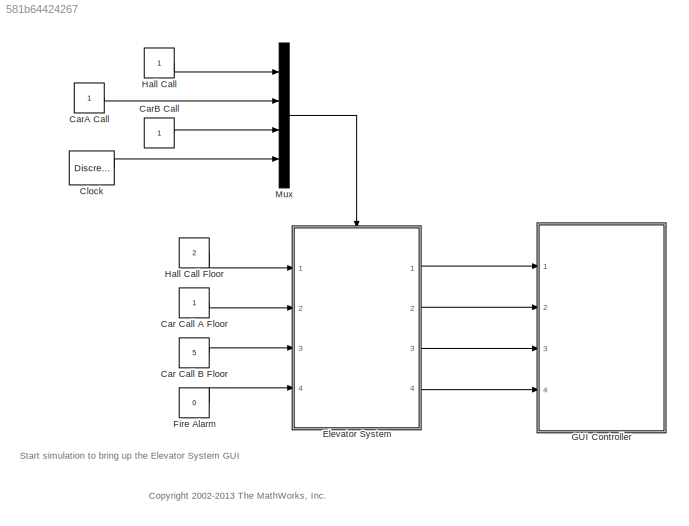
MODEL slx_581b64424267
KIND model
CONFIG AbsTol = auto
CONFIG EnableMultiTasking = on
CONFIG FixedStep = 0.01
CONFIG InitFcn = allCarIds = [1 2];
CONFIG MaxStep = auto
CONFIG MinStep = auto
CONFIG RelTol = 1e-3
CONFIG SampleTimeConstraint = Unconstrained
CONFIG Solver = FixedStepDiscrete
CONFIG SolverName = FixedStepDiscrete
CONFIG StartFcn = sf_elevator_gui('init', 'sf_elevator_old', allCarIds);
CONFIG StartTime = 0.0
CONFIG StopFcn = sf_elevator_gui('close');
CONFIG StopTime = inf
BLOCK [Constant] Car Call A Floor
  OutDataTypeStr = uint8
BLOCK [Constant] Car Call B Floor
  OutDataTypeStr = uint8
  Value = 5
BLOCK [Constant] CarA Call
  OutDataTypeStr = double
BLOCK [Constant] CarB Call
  OutDataTypeStr = double
BLOCK [DiscretePulseGenerator] Clock
  Ports = [0, 1]
  PulseType = Time based
  PulseWidth = 50
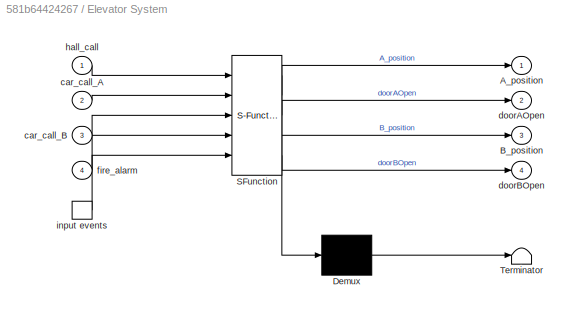
BLOCK [SubSystem] Elevator System
  ErrorFcn = Stateflow.Translate.translate
  PermitHierarchicalResolution = ExplicitOnly
  Ports = [4, 4, 0, 1]
  RequestExecContextInheritance = off
  SFBlockType = Chart
  TreatAsAtomicUnit = on
  Variant = off
BLOCK [Demux] Elevator System/ Demux 
  Outputs = 1
  Ports = [1, 1]
BLOCK [S-Function] Elevator System/ SFunction 
  EnableBusSupport = off
  FunctionName = sf_sfun
  PortCounts = [5 5]
  Ports = [5, 5]
  SFcnIsStateOwnerBlock = off
  SFunctionDeploymentMode = off
  Tag = Stateflow S-Function sf_elevator_old 1
BLOCK [Terminator] Elevator System/ Terminator 
BLOCK [TriggerPort] Elevator System/ input events 
  Ports = [0, 1]
  ShowOutputPort = on
  TriggerType = either
  VariantControl = (inherit)
BLOCK [Outport] Elevator System/A_position
  IconDisplay = Port number
BLOCK [Outport] Elevator System/B_position
  IconDisplay = Port number
  Port = 3
BLOCK [Inport] Elevator System/car_call_A
  IconDisplay = Port number
  Port = 2
BLOCK [Inport] Elevator System/car_call_B
  IconDisplay = Port number
  Port = 3
BLOCK [Outport] Elevator System/doorAOpen
  IconDisplay = Port number
  Port = 2
BLOCK [Outport] Elevator System/doorBOpen
  IconDisplay = Port number
  Port = 4
BLOCK [Inport] Elevator System/fire_alarm
  IconDisplay = Port number
  Port = 4
BLOCK [Inport] Elevator System/hall_call
  IconDisplay = Port number
BLOCK [Constant] Fire Alarm
  OutDataTypeStr = uint8
  Value = 0
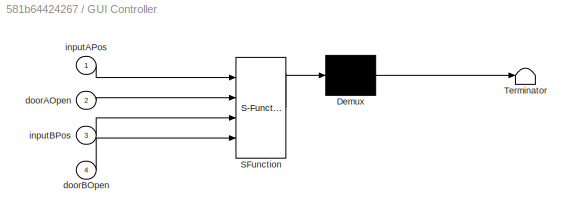
BLOCK [SubSystem] GUI Controller
  ErrorFcn = Stateflow.Translate.translate
  PermitHierarchicalResolution = ExplicitOnly
  Ports = [4]
  RequestExecContextInheritance = off
  SFBlockType = Chart
  TreatAsAtomicUnit = on
  Variant = off
BLOCK [Demux] GUI Controller/ Demux 
  Outputs = 1
  Ports = [1, 1]
BLOCK [S-Function] GUI Controller/ SFunction 
  EnableBusSupport = off
  FunctionName = sf_sfun
  Parameters = allCarIds
  PortCounts = [4 1]
  Ports = [4, 1]
  SFcnIsStateOwnerBlock = off
  SFunctionDeploymentMode = off
  Tag = Stateflow S-Function sf_elevator_old 4
BLOCK [Terminator] GUI Controller/ Terminator 
BLOCK [Inport] GUI Controller/doorAOpen
  IconDisplay = Port number
  Port = 2
BLOCK [Inport] GUI Controller/doorBOpen
  IconDisplay = Port number
  Port = 4
BLOCK [Inport] GUI Controller/inputAPos
  IconDisplay = Port number
BLOCK [Inport] GUI Controller/inputBPos
  IconDisplay = Port number
  Port = 3
BLOCK [Constant] Hall Call
  OutDataTypeStr = double
BLOCK [Constant] Hall Call Floor
  OutDataTypeStr = uint8
  Value = 2
BLOCK [Mux] Mux
  DisplayOption = bar
  Ports = [4, 1]
ANNOTATION (root): <copyright redacted>
ANNOTATION (root): Start simulation to bring up the Elevator System GUI
LINE Car Call A Floor:1 -> Elevator System:2
LINE Car Call B Floor:1 -> Elevator System:3
LINE CarA Call:1 -> Mux:2
LINE CarB Call:1 -> Mux:3
LINE Clock:1 -> Mux:4
LINE Elevator System:1 -> GUI Controller:1
LINE Elevator System:2 -> GUI Controller:2
LINE Elevator System:3 -> GUI Controller:3
LINE Elevator System:4 -> GUI Controller:4
LINE Fire Alarm:1 -> Elevator System:4
LINE Hall Call Floor:1 -> Elevator System:1
LINE Hall Call:1 -> Mux:1
LINE Mux:1 -> Elevator System:trigger
CHART Elevator System states=37 transitions=171
  STATE_LABEL 'Elevator_Manager\n\ndu: A_position = Elevator_A.get_position();\n      B_position = Elevator_B.get_position();'
  STATE_LABEL 'process_hall_call()'
  STATE_LABEL "{\n/* 'INIT':Initialization */\nrequest_floor = hall_call_queue[0];\n}"
  STATE_LABEL '{\n/* Fire alarm is on */\nfire_alarm_on = (fire_alarm);\n}'
  STATE_LABEL '{\n/* There is outstanding request */\nrequest_outstanding = (request_floor > 0);\n}'
  STATE_LABEL '{\n/* Elevator A is idle */\nelevator_A_idle = (Elevator_A.get_status() == IDLE);\n}'
  STATE_LABEL '{\n/* Elevator B is idle */\nelevator_B_idle = (Elevator_B.get_status() == IDLE);\n}'
  STATE_LABEL '{\n/* Elevator A is closer to request */\nelevator_A_closer = (fabs(Elevator_A.get_position() - request_floor) <= fabs(Elevator_B.get_position() - request_floor));\n}'
  STATE_LABEL '[fire_alarm_on]'
  STATE_LABEL "{\n/* 'EMR':Emergency */\nElevator_A.register(floor(Elevator_A.get_position()+Elevator_A.get_direction()/2));\nElevator_B.register(floor(Elevator_B.get_position()+Elevator_B.get_direction()/2));\n}"
  STATE_LABEL '[!request_outstanding]'
  STATE_LABEL "{\n/* 'NONE':Both elevators are busy or no request present */\n\n}"
  STATE_LABEL '[!elevator_A_idle && !elevator_B_idle]'
  STATE_LABEL "{\n/* 'NONE':Both elevators are busy or no request present */\n\n}"
  STATE_LABEL '[elevator_A_idle && !elevator_B_idle]'
  STATE_LABEL "{\n/* 'A':Elevator A should respond to request */\nElevator_A.enqueue(request_floor);\ndequeue(request_floor);\n}"
  STATE_LABEL '[!elevator_A_idle && elevator_B_idle]'
  STATE_LABEL "{\n/* 'B':Elevator B should respond to request */\nElevator_B.enqueue(request_floor);\ndequeue(request_floor);\n}"
  STATE_LABEL '[elevator_A_idle && elevator_B_idle && elevator_A_closer]'
  STATE_LABEL "{\n/* 'A':Elevator A should respond to request */\nElevator_A.enqueue(request_floor);\ndequeue(request_floor);\n}"
  STATE_LABEL '[elevator_A_idle && elevator_B_idle && !elevator_A_closer]'
  STATE_LABEL "{\n/* 'B':Elevator B should respond to request */\nElevator_B.enqueue(request_floor);\ndequeue(request_floor);\n}"
  STATE_LABEL 'ans = exists_in_queue(floor)'
  STATE_LABEL '{i=0;}'
  STATE_LABEL '[hall_call_queue[i] > 0 && ...\ni<NUM_FLOOR && ...\nhall_call_queue[i] != floor]{i++;}'
  STATE_LABEL '[i >= NUM_FLOOR || hall_call_queue[i] == 0]{ans = 0;}'
  STATE_LABEL '{ans = i+1;}'
  STATE_LABEL 'register(hall_call_floor)'
  STATE_LABEL '{enqueue(hall_call_floor);\nhall_call_status[hall_call_floor] = 1;}'
  STATE_LABEL 'deregister(hall_call_floor)'
  STATE_LABEL '{dequeue(hall_call_floor);\nhall_call_status[hall_call_floor] = 0;}'
  STATE_LABEL 'enqueue(hall_call_floor)'
  STATE_LABEL '[hall_call_status[hall_call_floor] != 0]'
  STATE_LABEL '{i = 0;}'
  STATE_LABEL '[hall_call_queue[i] == hall_call_floor]'
  STATE_LABEL '[hall_call_queue[i] > 0 && i<NUM_FLOOR]{i++;}'
  STATE_LABEL '[i >= NUM_FLOOR]'
  STATE_LABEL '{hall_call_queue[i] = hall_call_floor;}'
  STATE_LABEL 'dequeue(hall_call_floor)'
  STATE_LABEL '{i=0;}'
CHART GUI Controller states=14 transitions=42
  STATE_LABEL 'CarA_Controller'
  STATE_LABEL 'close_door'
  STATE_LABEL "{ml.sf_elevator_gui('close_door', allCarIds[0]);}"
  STATE_LABEL 'open_door'
  STATE_LABEL "{ml.sf_elevator_gui('open_door', allCarIds[0]);}"
  STATE_LABEL 'move(pos)'
  STATE_LABEL "{ml.sf_elevator_gui('move_car', allCarIds[0], pos);}"
  STATE_LABEL 'deactivate_hall_button(pos)'
  STATE_LABEL "{floorNum = get_floor_number(pos);\nml.sf_elevator_gui('deactivate','hall', floorNum);}"
  STATE_LABEL 'deactivate_car_button(pos)'
  STATE_LABEL "{floorNum = get_floor_number(pos);\nml.sf_elevator_gui('deactivate',allCarIds[0], floorNum);}"
  STATE_LABEL 'floorNumber = get_floor_number(pos)'
  STATE_LABEL '{floorNumber = ml.round(pos);}'
  STATE_LABEL '[hasChanged(inputAPos)]'
  STATE_LABEL '{move(inputAPos);}'
  STATE_LABEL '[hasChanged(doorAOpen)]'
  STATE_LABEL '[doorAOpen]'
  STATE_LABEL '{close_door();}'
  STATE_LABEL '{open_door();}'
  STATE_LABEL '{deactivate_hall_button(inputAPos);\n deactivate_car_button(inputAPos);}'
  STATE_LABEL 'close_door'
  STATE_LABEL "{ml.sf_elevator_gui('close_door', allCarIds[0]);}"
  STATE_LABEL 'open_door'
  STATE_LABEL "{ml.sf_elevator_gui('open_door', allCarIds[0]);}"
  STATE_LABEL 'move(pos)'
  STATE_LABEL "{ml.sf_elevator_gui('move_car', allCarIds[0], pos);}"
  STATE_LABEL 'deactivate_hall_button(pos)'
  STATE_LABEL "{floorNum = get_floor_number(pos);\nml.sf_elevator_gui('deactivate','hall', floorNum);}"
  STATE_LABEL 'deactivate_car_button(pos)'
  STATE_LABEL "{floorNum = get_floor_number(pos);\nml.sf_elevator_gui('deactivate',allCarIds[0], floorNum);}"
  STATE_LABEL 'floorNumber = get_floor_number(pos)'
  STATE_LABEL '{floorNumber = ml.round(pos);}'
  STATE_LABEL 'CarB_Controller'
  STATE_LABEL 'close_door'
  STATE_LABEL "{ml.sf_elevator_gui('close_door', allCarIds[1]);}"
  STATE_LABEL 'open_door'
  STATE_LABEL "{ml.sf_elevator_gui('open_door', allCarIds[1]);}"
  STATE_LABEL 'move(pos)'
  STATE_LABEL "{ml.sf_elevator_gui('move_car', allCarIds[1], pos);}"
  STATE_LABEL 'deactivate_hall_button(pos)'
